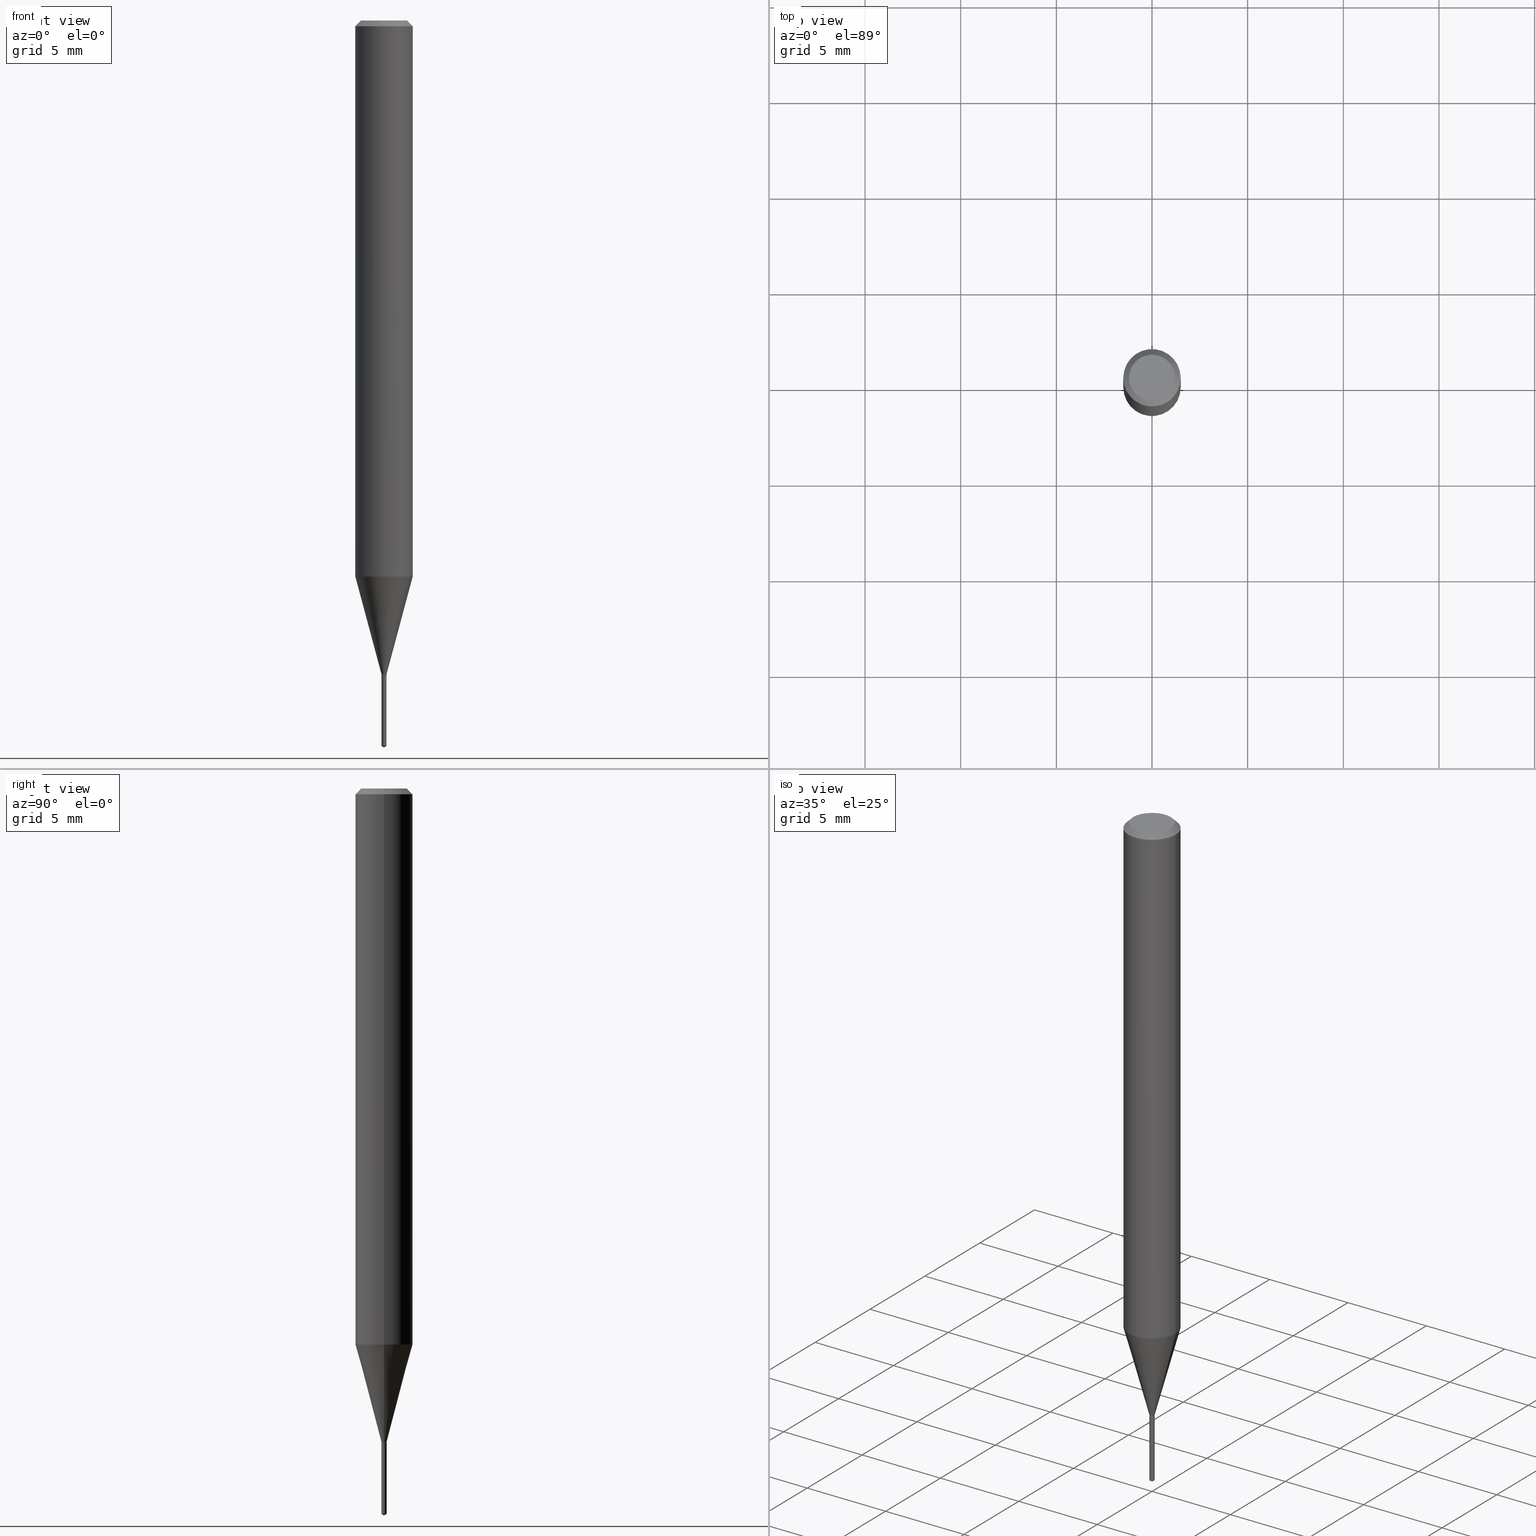
[diagram: canonical four-view strip — front | top / right | iso, engineering-drawing reading convention]
A machine part, canonical four-view strip (front | top / right | iso — engineering-drawing reading convention). The complete STEP part file that produces these views, byte-faithful:
ISO-10303-21;
HEADER;
FILE_DESCRIPTION (( 'STEP AP203' ),
    '1' );
FILE_NAME ('07746.STEP',
    '2024-04-24T02:09:57',
    ( '' ),
    ( '' ),
    'SwSTEP 2.0',
    'SolidWorks 2023',
    '' );
FILE_SCHEMA (( 'CONFIG_CONTROL_DESIGN' ));
ENDSEC;

DATA;
#1 = CARTESIAN_POINT ( 'NONE',  ( 3.292823747528285468E-29, -4.701279622752294493E-15, -1.346499999999999586 ) ) ;
#2 = PERSON_AND_ORGANIZATION_ROLE ( 'design_supplier' ) ;
#3 = CARTESIAN_POINT ( 'NONE',  ( 3.765876499531823880E-17, 0.005299999999995298923, -1.346500000000000030 ) ) ;
#4 = CONICAL_SURFACE ( 'NONE', #290, 0.005300000000000000891, 0.2617993877991500740 ) ;
#5 = CARTESIAN_POINT ( 'NONE',  ( -0.005300000000000000891, -4.659954802351225412E-15, -1.346000000000000085 ) ) ;
#6 = CARTESIAN_POINT ( 'NONE',  ( 3.292823747528286589E-29, -4.701279622752295282E-15, -1.346500000000000030 ) ) ;
#7 = CARTESIAN_POINT ( 'NONE',  ( 3.292823747528285468E-29, -4.701279622752294493E-15, -1.346499999999999586 ) ) ;
#8 = ADVANCED_FACE ( 'NONE', ( #201 ), #329, .T. ) ;
#9 = LINE ( 'NONE', #3, #26 ) ;
#10 = ORIENTED_EDGE ( 'NONE', *, *, #467, .T. ) ;
#11 = DIRECTION ( 'NONE',  ( -2.445468806185136597E-29, 3.491481338843145583E-15, 1.000000000000000000 ) ) ;
#12 = AXIS2_PLACEMENT_3D ( 'NONE', #56, #436, #248 ) ;
#13 = EDGE_LOOP ( 'NONE', ( #389, #215, #32, #187 ) ) ;
#14 = DIRECTION ( 'NONE',  ( -2.438088387897960049E-29, 3.491481338843145188E-15, 1.000000000000000000 ) ) ;
#15 = ORIENTED_EDGE ( 'NONE', *, *, #225, .F. ) ;
#16 = DIRECTION ( 'NONE',  ( 1.000000000000000000, -6.982962677686350330E-15, 0.000000000000000000 ) ) ;
#17 = DIRECTION ( 'NONE',  ( 1.000000000000000000, -6.982962677686250933E-15, 0.000000000000000000 ) ) ;
#18 = CARTESIAN_POINT ( 'NONE',  ( 3.658626092347039619E-29, -5.223662210563784453E-15, -1.496099999999999985 ) ) ;
#19 = CIRCLE ( 'NONE', #147, 0.05905000000000013710 ) ;
#20 = CARTESIAN_POINT ( 'NONE',  ( 2.798355503914224078E-29, -3.995310018534680444E-15, -1.144302269093172786 ) ) ;
#21 = APPROVAL_STATUS ( 'not_yet_approved' ) ;
#22 = EDGE_LOOP ( 'NONE', ( #71, #164, #411 ) ) ;
#23 = PERSON_AND_ORGANIZATION ( #158, #28 ) ;
#24 = DIRECTION ( 'NONE',  ( -0.2588190451025213501, 5.211531920934551042E-15, 0.9659258262890682012 ) ) ;
#25 = ORIENTED_EDGE ( 'NONE', *, *, #446, .F. ) ;
#26 = VECTOR ( 'NONE', #159, 39.37007874015748143 ) ;
#27 = LOCAL_TIME ( 22, 9, 57.00000000000000000, #366 ) ;
#28 = ORGANIZATION ( 'UNSPECIFIED', 'UNSPECIFIED', '' ) ;
#29 = LINE ( 'NONE', #180, #242 ) ;
#30 = ORIENTED_EDGE ( 'NONE', *, *, #364, .F. ) ;
#31 = PERSON_AND_ORGANIZATION_ROLE ( 'creator' ) ;
#32 = ORIENTED_EDGE ( 'NONE', *, *, #455, .T. ) ;
#33 = EDGE_CURVE ( 'NONE', #236, #327, #193, .T. ) ;
#34 = ORIENTED_EDGE ( 'NONE', *, *, #144, .F. ) ;
#35 = APPROVAL_DATE_TIME ( #194, #170 ) ;
#36 = FACE_OUTER_BOUND ( 'NONE', #409, .T. ) ;
#37 = ORIENTED_EDGE ( 'NONE', *, *, #55, .T. ) ;
#38 = AXIS2_PLACEMENT_3D ( 'NONE', #432, #310, #17 ) ;
#39 = DIRECTION ( 'NONE',  ( -2.445468806185136597E-29, 3.491481338843145583E-15, 1.000000000000000000 ) ) ;
#40 = CARTESIAN_POINT ( 'NONE',  ( 0.000000000000000000, 0.000000000000000000, 0.000000000000000000 ) ) ;
#41 = DIRECTION ( 'NONE',  ( 1.000000000000000000, -6.982962677686266711E-15, 4.876176775795936353E-29 ) ) ;
#42 = CIRCLE ( 'NONE', #274, 0.05904999999999999832 ) ;
#43 = DIRECTION ( 'NONE',  ( -2.445468806185136597E-29, 3.491481338843145583E-15, 1.000000000000000000 ) ) ;
#44 = DIRECTION ( 'NONE',  ( 2.445468806185136597E-29, -3.491481338843145583E-15, -1.000000000000000000 ) ) ;
#45 = CARTESIAN_POINT ( 'NONE',  ( 0.05904999999999999832, -4.463468013801466955E-16, -0.01181000000000007044 ) ) ;
#46 = PRODUCT_RELATED_PRODUCT_CATEGORY ( 'detail', '', ( #206 ) ) ;
#47 = LINE ( 'NONE', #202, #122 ) ;
#48 = DIRECTION ( 'NONE',  ( -2.445468806185136877E-29, 3.491481338843145188E-15, 1.000000000000000000 ) ) ;
#49 = VERTEX_POINT ( 'NONE', #149 ) ;
#50 = FACE_OUTER_BOUND ( 'NONE', #240, .T. ) ;
#51 = EDGE_CURVE ( 'NONE', #178, #161, #76, .T. ) ;
#52 = AXIS2_PLACEMENT_3D ( 'NONE', #139, #326, #324 ) ;
#53 = VERTEX_POINT ( 'NONE', #157 ) ;
#54 = CARTESIAN_POINT ( 'NONE',  ( 3.288910997438389961E-29, -4.695693252610146470E-15, -1.344899999999999984 ) ) ;
#55 = EDGE_CURVE ( 'NONE', #327, #53, #9, .T. ) ;
#56 = CARTESIAN_POINT ( 'NONE',  ( 8.265746106709734507E-48, -1.180129479067563789E-33, -3.380025165646692144E-19 ) ) ;
#57 = ORIENTED_EDGE ( 'NONE', *, *, #356, .T. ) ;
#58 = PLANE ( 'NONE',  #266 ) ;
#59 = CARTESIAN_POINT ( 'NONE',  ( 0.005300000000000000891, -4.732702954801883924E-15, -1.344899999999999984 ) ) ;
#60 = ADVANCED_FACE ( 'NONE', ( #458 ), #78, .T. ) ;
#61 = ORIENTED_EDGE ( 'NONE', *, *, #219, .T. ) ;
#62 = DIRECTION ( 'NONE',  ( 0.2588190451025213501, 1.565188264969621968E-15, 0.9659258262890682012 ) ) ;
#63 = DIRECTION ( 'NONE',  ( 2.438088387897960049E-29, -3.491481338843145188E-15, -1.000000000000000000 ) ) ;
#64 = AXIS2_PLACEMENT_3D ( 'NONE', #118, #43, #314 ) ;
#65 = DATE_TIME_ROLE ( 'creation_date' ) ;
#66 = DIRECTION ( 'NONE',  ( 1.000000000000000000, 0.000000000000000000, 0.000000000000000000 ) ) ;
#67 = DIRECTION ( 'NONE',  ( -2.445442211314109806E-29, 3.491519424212141825E-15, 1.000000000000000000 ) ) ;
#68 = VECTOR ( 'NONE', #124, 39.37007874015748143 ) ;
#69 = DATE_AND_TIME ( #321, #309 ) ;
#70 = CC_DESIGN_DATE_AND_TIME_ASSIGNMENT ( #357, #65, ( #398 ) ) ;
#71 = ORIENTED_EDGE ( 'NONE', *, *, #479, .F. ) ;
#72 = EDGE_CURVE ( 'NONE', #129, #396, #42, .T. ) ;
#73 = FACE_OUTER_BOUND ( 'NONE', #22, .T. ) ;
#74 = ORIENTED_EDGE ( 'NONE', *, *, #358, .F. ) ;
#75 = PERSON_AND_ORGANIZATION ( #158, #28 ) ;
#76 = CIRCLE ( 'NONE', #405, 0.004800000000000000447 ) ;
#77 = CARTESIAN_POINT ( 'NONE',  ( 2.888098660104663766E-31, -4.123439461173779647E-17, -0.01181000000000007044 ) ) ;
#78 = CYLINDRICAL_SURFACE ( 'NONE', #415, 0.005300000000000000891 ) ;
#79 = PERSON_AND_ORGANIZATION_ROLE ( 'classification_officer' ) ;
#80 = DIRECTION ( 'NONE',  ( 1.000000000000000000, -6.982962677686250933E-15, 0.000000000000000000 ) ) ;
#81 = VERTEX_POINT ( 'NONE', #261 ) ;
#82 = CALENDAR_DATE ( 2024, 23, 4 ) ;
#83 = DIRECTION ( 'NONE',  ( -2.445468806185136597E-29, 3.491481338843145583E-15, 1.000000000000000000 ) ) ;
#84 = ORIENTED_EDGE ( 'NONE', *, *, #380, .F. ) ;
#85 = PERSON_AND_ORGANIZATION ( #158, #28 ) ;
#86 = AXIS2_PLACEMENT_3D ( 'NONE', #40, #297, #41 ) ;
#87 = CARTESIAN_POINT ( 'NONE',  ( 8.265746106709734507E-48, -1.180129479067563789E-33, -3.380025165646692144E-19 ) ) ;
#88 = EDGE_CURVE ( 'NONE', #133, #384, #420, .T. ) ;
#89 = FACE_OUTER_BOUND ( 'NONE', #92, .T. ) ;
#90 = FACE_OUTER_BOUND ( 'NONE', #460, .T. ) ;
#91 = DIRECTION ( 'NONE',  ( -2.445468806185136597E-29, 3.491481338843145583E-15, 1.000000000000000000 ) ) ;
#92 = EDGE_LOOP ( 'NONE', ( #264, #145, #99, #437 ) ) ;
#93 = CLOSED_SHELL ( 'NONE', ( #421, #348, #289, #443, #60, #172, #412, #163, #308, #209, #452, #8 ) ) ;
#94 = CARTESIAN_POINT ( 'NONE',  ( -0.05905000000000013710, -3.575734533068340951E-15, -1.144302269093172786 ) ) ;
#95 = CIRCLE ( 'NONE', #12, 0.04724000000000000421 ) ;
#96 = SECURITY_CLASSIFICATION ( '', '', #302 ) ;
#97 = ORIENTED_EDGE ( 'NONE', *, *, #306, .T. ) ;
#98 = LINE ( 'NONE', #429, #288 ) ;
#99 = ORIENTED_EDGE ( 'NONE', *, *, #484, .F. ) ;
#100 = DIRECTION ( 'NONE',  ( -2.445468806185136597E-29, 3.491481338843145583E-15, 1.000000000000000000 ) ) ;
#101 = DATE_AND_TIME ( #402, #27 ) ;
#102 = CIRCLE ( 'NONE', #371, 0.005300000000000000891 ) ;
#103 = CC_DESIGN_APPROVAL ( #148, ( #298 ) ) ;
#104 = DIRECTION ( 'NONE',  ( -6.982962677686265133E-15, -1.000000000000000000, 3.468864327941658112E-15 ) ) ;
#105 = DIRECTION ( 'NONE',  ( -2.445468806185136877E-29, 3.491481338843145188E-15, 1.000000000000000000 ) ) ;
#106 = EDGE_LOOP ( 'NONE', ( #367, #393 ) ) ;
#107 = APPLICATION_PROTOCOL_DEFINITION ( 'international standard', 'config_control_design', 1994, #216 ) ;
#108 = AXIS2_PLACEMENT_3D ( 'NONE', #7, #373, #80 ) ;
#109 = EDGE_LOOP ( 'NONE', ( #369, #10 ) ) ;
#110 = DIRECTION ( 'NONE',  ( -2.445442211314109806E-29, 3.491519424212141825E-15, 1.000000000000000000 ) ) ;
#111 = ORIENTED_EDGE ( 'NONE', *, *, #455, .F. ) ;
#112 = EDGE_CURVE ( 'NONE', #463, #396, #116, .T. ) ;
#113 = DATE_AND_TIME ( #82, #154 ) ;
#114 = CARTESIAN_POINT ( 'NONE',  ( 0.000000000000000000, 0.000000000000000000, 0.000000000000000000 ) ) ;
#115 = VECTOR ( 'NONE', #24, 39.37007874015747433 ) ;
#116 = LINE ( 'NONE', #45, #68 ) ;
#117 = APPROVAL_ROLE ( '' ) ;
#118 = CARTESIAN_POINT ( 'NONE',  ( 0.000000000000000000, 0.000000000000000000, 0.000000000000000000 ) ) ;
#119 = DIRECTION ( 'NONE',  ( -6.982962677686265133E-15, -1.000000000000000000, 0.000000000000000000 ) ) ;
#120 = EDGE_CURVE ( 'NONE', #396, #129, #239, .T. ) ;
#121 = AXIS2_PLACEMENT_3D ( 'NONE', #77, #44, #198 ) ;
#122 = VECTOR ( 'NONE', #130, 39.37007874015748143 ) ;
#123 = CARTESIAN_POINT ( 'NONE',  ( 3.650874241760179392E-29, -5.212491971044763500E-15, -1.492915438719153887 ) ) ;
#124 = DIRECTION ( 'NONE',  ( 0.7071067811865453523, -7.319954787623248157E-15, -0.7071067811865496822 ) ) ;
#125 = DIRECTION ( 'NONE',  ( 1.000000000000000000, -6.982962677686250933E-15, 0.000000000000000000 ) ) ;
#126 = CARTESIAN_POINT ( 'NONE',  ( -0.05904999999999999832, 3.711095515056362547E-16, -0.01181000000000007044 ) ) ;
#127 = CC_DESIGN_PERSON_AND_ORGANIZATION_ASSIGNMENT ( #85, #2, ( #298 ) ) ;
#128 = LINE ( 'NONE', #272, #416 ) ;
#129 = VERTEX_POINT ( 'NONE', #301 ) ;
#130 = DIRECTION ( 'NONE',  ( -0.7071067811868120279, 7.493145998871310260E-15, 0.7071067811862831176 ) ) ;
#131 = AXIS2_PLACEMENT_3D ( 'NONE', #20, #247, #385 ) ;
#132 = FACE_OUTER_BOUND ( 'NONE', #13, .T. ) ;
#133 = VERTEX_POINT ( 'NONE', #5 ) ;
#134 = DIRECTION ( 'NONE',  ( 1.000000000000000000, -6.982962677686350330E-15, 0.000000000000000000 ) ) ;
#135 = LENGTH_MEASURE_WITH_UNIT ( LENGTH_MEASURE( 0.02539999999999999897 ), #368 );
#136 = CC_DESIGN_PERSON_AND_ORGANIZATION_ASSIGNMENT ( #440, #260, ( #206 ) ) ;
#137 = LOCAL_TIME ( 22, 9, 57.00000000000000000, #217 ) ;
#138 = ADVANCED_FACE ( 'NONE', ( #427 ), #333, .T. ) ;
#139 = CARTESIAN_POINT ( 'NONE',  ( 3.292823747528286589E-29, -4.701279622752295282E-15, -1.346500000000000030 ) ) ;
#140 = EDGE_LOOP ( 'NONE', ( #474, #403, #299, #287 ) ) ;
#141 = APPLICATION_PROTOCOL_DEFINITION ( 'international standard', 'config_control_design', 1994, #192 ) ;
#142 = ORIENTED_EDGE ( 'NONE', *, *, #285, .T. ) ;
#143 = DIRECTION ( 'NONE',  ( 1.000000000000000000, -6.982962677686350330E-15, 0.000000000000000000 ) ) ;
#144 = EDGE_CURVE ( 'NONE', #463, #279, #258, .T. ) ;
#145 = ORIENTED_EDGE ( 'NONE', *, *, #431, .T. ) ;
#146 = CIRCLE ( 'NONE', #230, 0.005300000000000000891 ) ;
#147 = AXIS2_PLACEMENT_3D ( 'NONE', #477, #394, #278 ) ;
#148 = APPROVAL ( #21, 'UNSPECIFIED' ) ;
#149 = CARTESIAN_POINT ( 'NONE',  ( -3.700970219170428424E-17, -0.005300000000004701992, -1.346500000000000030 ) ) ;
#150 = CARTESIAN_POINT ( 'NONE',  ( 3.658698340357466246E-29, -5.223559646665077197E-15, -1.496099999999999985 ) ) ;
#151 = ORIENTED_EDGE ( 'NONE', *, *, #120, .T. ) ;
#152 = CIRCLE ( 'NONE', #177, 0.005300000000000000891 ) ;
#153 = ADVANCED_FACE ( 'NONE', ( #226 ), #167, .T. ) ;
#154 = LOCAL_TIME ( 22, 9, 57.00000000000000000, #293 ) ;
#155 = CALENDAR_DATE ( 2024, 23, 4 ) ;
#156 = DIRECTION ( 'NONE',  ( 1.000000000000000000, -6.982962677686266711E-15, 0.000000000000000000 ) ) ;
#157 = CARTESIAN_POINT ( 'NONE',  ( 3.765876499532184414E-17, 0.005299999999995298923, -1.346500000000000030 ) ) ;
#158 = PERSON ( 'UNSPECIFIED', 'UNSPECIFIED', 'UNSPECIFIED', ('UNSPECIFIED'), ('UNSPECIFIED'), ('UNSPECIFIED') ) ;
#159 = DIRECTION ( 'NONE',  ( -2.445442211314110086E-29, 3.491519424212141825E-15, 1.000000000000000000 ) ) ;
#160 = DIRECTION ( 'NONE',  ( 1.000000000000000000, -6.982962677686350330E-15, 0.000000000000000000 ) ) ;
#161 = VERTEX_POINT ( 'NONE', #374 ) ;
#162 = LINE ( 'NONE', #311, #400 ) ;
#163 = ADVANCED_FACE ( 'NONE', ( #90 ), #376, .T. ) ;
#164 = ORIENTED_EDGE ( 'NONE', *, *, #33, .T. ) ;
#165 = FACE_OUTER_BOUND ( 'NONE', #464, .T. ) ;
#166 = CARTESIAN_POINT ( 'NONE',  ( 3.292823747528286589E-29, -4.701279622752295282E-15, -1.346500000000000030 ) ) ;
#167 = CONICAL_SURFACE ( 'NONE', #335, 65.52281426576722367, 1.029744258676646318 ) ;
#168 = AXIS2_PLACEMENT_3D ( 'NONE', #487, #173, #143 ) ;
#169 = CARTESIAN_POINT ( 'NONE',  ( 0.004800000000000000447, -4.734797843605188150E-15, -1.346499999999999586 ) ) ;
#170 = APPROVAL ( #461, 'UNSPECIFIED' ) ;
#171 = DIRECTION ( 'NONE',  ( 0.000000000000000000, 0.000000000000000000, 1.000000000000000000 ) ) ;
#172 = ADVANCED_FACE ( 'NONE', ( #195 ), #336, .T. ) ;
#173 = DIRECTION ( 'NONE',  ( -2.445468806185136597E-29, 3.491481338843145583E-15, 1.000000000000000000 ) ) ;
#174 = APPROVAL_ROLE ( '' ) ;
#175 = VECTOR ( 'NONE', #105, 39.37007874015748143 ) ;
#176 = LINE ( 'NONE', #360, #115 ) ;
#177 = AXIS2_PLACEMENT_3D ( 'NONE', #6, #423, #303 ) ;
#178 = VERTEX_POINT ( 'NONE', #252 ) ;
#179 = AXIS2_PLACEMENT_3D ( 'NONE', #54, #11, #160 ) ;
#180 = CARTESIAN_POINT ( 'NONE',  ( 3.658626092347039619E-29, -5.223662210563784453E-15, -1.496099999999999985 ) ) ;
#181 = DIRECTION ( 'NONE',  ( -6.982962677686265133E-15, -1.000000000000000000, 0.000000000000000000 ) ) ;
#182 = ORIENTED_EDGE ( 'NONE', *, *, #341, .T. ) ;
#183 = UNCERTAINTY_MEASURE_WITH_UNIT (LENGTH_MEASURE( 1.000000000000000082E-05 ), #286, 'distance_accuracy_value', 'NONE');
#184 = CARTESIAN_POINT ( 'NONE',  ( 0.04724000000000000421, -3.852183633974369345E-16, -3.380025165621689721E-19 ) ) ;
#185 = MANIFOLD_SOLID_BREP ( 'Body-Move/Copy2[2]', #93 ) ;
#186 = CYLINDRICAL_SURFACE ( 'NONE', #322, 0.05905000000000006771 ) ;
#187 = ORIENTED_EDGE ( 'NONE', *, *, #467, .F. ) ;
#188 = ADVANCED_FACE ( 'NONE', ( #132 ), #319, .T. ) ;
#189 = AXIS2_PLACEMENT_3D ( 'NONE', #390, #211, #355 ) ;
#190 = PERSON_AND_ORGANIZATION_ROLE ( 'creator' ) ;
#191 = VERTEX_POINT ( 'NONE', #59 ) ;
#192 = APPLICATION_CONTEXT ( 'configuration controlled 3d designs of mechanical parts and assemblies' ) ;
#193 = LINE ( 'NONE', #150, #353 ) ;
#194 = DATE_AND_TIME ( #155, #231 ) ;
#195 = FACE_OUTER_BOUND ( 'NONE', #229, .T. ) ;
#196 = CIRCLE ( 'NONE', #212, 0.005300000000000000891 ) ;
#197 = APPROVAL_PERSON_ORGANIZATION ( #75, #170, #117 ) ;
#198 = DIRECTION ( 'NONE',  ( -1.000000000000000000, 6.982962677686266711E-15, 0.000000000000000000 ) ) ;
#199 = DIRECTION ( 'NONE',  ( 1.000000000000000000, -6.982962677686266711E-15, 4.876185090822587894E-29 ) ) ;
#200 = CARTESIAN_POINT ( 'NONE',  ( 3.765876499532181332E-17, 0.005299999999994787180, -1.492915438719153887 ) ) ;
#201 = FACE_OUTER_BOUND ( 'NONE', #140, .T. ) ;
#202 = CARTESIAN_POINT ( 'NONE',  ( -0.004800000000000000447, -4.667173571435809496E-15, -1.346499999999999586 ) ) ;
#203 = AXIS2_PLACEMENT_3D ( 'NONE', #391, #63, #383 ) ;
#204 = PLANE ( 'NONE',  #457 ) ;
#205 = DIRECTION ( 'NONE',  ( 2.445468806185136597E-29, -3.491481338843145583E-15, -1.000000000000000000 ) ) ;
#206 = PRODUCT ( '07746', '07746', '', ( #282 ) ) ;
#207 = ORIENTED_EDGE ( 'NONE', *, *, #325, .F. ) ;
#208 = DIRECTION ( 'NONE',  ( 6.982962677686265922E-15, 1.000000000000000000, -3.491519424212141825E-15 ) ) ;
#209 = ADVANCED_FACE ( 'NONE', ( #350 ), #273, .F. ) ;
#210 = EDGE_LOOP ( 'NONE', ( #428, #354, #84, #408 ) ) ;
#211 = DIRECTION ( 'NONE',  ( -2.445468806185136597E-29, 3.491481338843145583E-15, 1.000000000000000000 ) ) ;
#212 = AXIS2_PLACEMENT_3D ( 'NONE', #352, #465, #134 ) ;
#213 = CONICAL_SURFACE ( 'NONE', #255, 65.52281426576722367, 1.029744258676646318 ) ;
#214 = CC_DESIGN_DATE_AND_TIME_ASSIGNMENT ( #113, #227, ( #96 ) ) ;
#215 = ORIENTED_EDGE ( 'NONE', *, *, #364, .T. ) ;
#216 = APPLICATION_CONTEXT ( 'configuration controlled 3d designs of mechanical parts and assemblies' ) ;
#217 = COORDINATED_UNIVERSAL_TIME_OFFSET ( 5, 0, .BEHIND. ) ;
#218 = APPROVAL_PERSON_ORGANIZATION ( #478, #277, #359 ) ;
#219 = EDGE_CURVE ( 'NONE', #279, #129, #433, .T. ) ;
#220 = APPROVAL_DATE_TIME ( #69, #148 ) ;
#221 = CARTESIAN_POINT ( 'NONE',  ( 0.005300000000000000891, -3.700970219173721302E-17, 2.584373691171846264E-31 ) ) ;
#222 = EDGE_CURVE ( 'NONE', #279, #463, #95, .T. ) ;
#223 = ORIENTED_EDGE ( 'NONE', *, *, #453, .F. ) ;
#224 = CIRCLE ( 'NONE', #131, 0.05905000000000013710 ) ;
#225 = EDGE_CURVE ( 'NONE', #81, #396, #395, .T. ) ;
#226 = FACE_OUTER_BOUND ( 'NONE', #485, .T. ) ;
#227 = DATE_TIME_ROLE ( 'classification_date' ) ;
#228 = DIRECTION ( 'NONE',  ( -6.982962677686265133E-15, -1.000000000000000000, 3.468864327941658112E-15 ) ) ;
#229 = EDGE_LOOP ( 'NONE', ( #434, #346, #142, #343 ) ) ;
#230 = AXIS2_PLACEMENT_3D ( 'NONE', #404, #67, #181 ) ;
#231 = LOCAL_TIME ( 22, 9, 57.00000000000000000, #375 ) ;
#232 = CARTESIAN_POINT ( 'NONE',  ( -9.261859051160046497E-28, 1.322377837254069045E-13, 37.87397874015748300 ) ) ;
#233 = CC_DESIGN_PERSON_AND_ORGANIZATION_ASSIGNMENT ( #419, #79, ( #96 ) ) ;
#234 = DIRECTION ( 'NONE',  ( -2.445468806185136597E-29, 3.491481338843145583E-15, 1.000000000000000000 ) ) ;
#235 = ORIENTED_EDGE ( 'NONE', *, *, #479, .T. ) ;
#236 = VERTEX_POINT ( 'NONE', #18 ) ;
#237 = CARTESIAN_POINT ( 'NONE',  ( -3.700970219170070355E-17, -0.005300000000005212000, -1.492915438719153887 ) ) ;
#238 = CARTESIAN_POINT ( 'NONE',  ( 3.292823747528286589E-29, -4.701279622752295282E-15, -1.346500000000000030 ) ) ;
#239 = CIRCLE ( 'NONE', #489, 0.05904999999999999832 ) ;
#240 = EDGE_LOOP ( 'NONE', ( #442, #57, #470, #292 ) ) ;
#241 =( GEOMETRIC_REPRESENTATION_CONTEXT ( 3 ) GLOBAL_UNCERTAINTY_ASSIGNED_CONTEXT ( ( #183 ) ) GLOBAL_UNIT_ASSIGNED_CONTEXT ( ( #286, #444, #449 ) ) REPRESENTATION_CONTEXT ( 'NONE', 'WORKASPACE' ) );
#242 = VECTOR ( 'NONE', #445, 39.37007874015748854 ) ;
#243 = DIRECTION ( 'NONE',  ( -2.445442211314110086E-29, 3.491519424212141825E-15, 1.000000000000000000 ) ) ;
#244 = DIRECTION ( 'NONE',  ( -0.7071067811865453523, 2.468850131082234184E-15, -0.7071067811865496822 ) ) ;
#245 = ADVANCED_BREP_SHAPE_REPRESENTATION ( '07746', ( #339, #185, #450 ), #241 ) ;
#246 = ORIENTED_EDGE ( 'NONE', *, *, #285, .F. ) ;
#247 = DIRECTION ( 'NONE',  ( -2.445468806185136597E-29, 3.491481338843145583E-15, 1.000000000000000000 ) ) ;
#248 = DIRECTION ( 'NONE',  ( 1.000000000000000000, -6.982962677686266711E-15, 4.876185090822587894E-29 ) ) ;
#249 = EDGE_CURVE ( 'NONE', #161, #459, #430, .T. ) ;
#250 = ORIENTED_EDGE ( 'NONE', *, *, #219, .F. ) ;
#251 = FACE_OUTER_BOUND ( 'NONE', #332, .T. ) ;
#252 = CARTESIAN_POINT ( 'NONE',  ( -0.004800000000000000447, -4.664524344261699084E-15, -1.346499999999999586 ) ) ;
#253 = CARTESIAN_POINT ( 'NONE',  ( 0.000000000000000000, 0.000000000000000000, 0.000000000000000000 ) ) ;
#254 = CIRCLE ( 'NONE', #38, 0.004800000000000000447 ) ;
#255 = AXIS2_PLACEMENT_3D ( 'NONE', #362, #110, #104 ) ;
#256 = DIRECTION ( 'NONE',  ( -2.445468806185136597E-29, 3.491481338843145583E-15, 1.000000000000000000 ) ) ;
#257 = APPROVAL_DATE_TIME ( #101, #277 ) ;
#258 = CIRCLE ( 'NONE', #296, 0.04724000000000000421 ) ;
#259 = ORIENTED_EDGE ( 'NONE', *, *, #484, .T. ) ;
#260 = PERSON_AND_ORGANIZATION_ROLE ( 'design_owner' ) ;
#261 = CARTESIAN_POINT ( 'NONE',  ( 0.05905000000000013710, -4.407653964652056153E-15, -1.144302269093172786 ) ) ;
#262 = CONICAL_SURFACE ( 'NONE', #323, 0.004800000000000000447, 0.7853981633978223131 ) ;
#263 = DIRECTION ( 'NONE',  ( -2.445442211314109806E-29, 3.491519424212141825E-15, 1.000000000000000000 ) ) ;
#264 = ORIENTED_EDGE ( 'NONE', *, *, #358, .T. ) ;
#265 = ORIENTED_EDGE ( 'NONE', *, *, #72, .F. ) ;
#266 = AXIS2_PLACEMENT_3D ( 'NONE', #166, #438, #208 ) ;
#267 = DIRECTION ( 'NONE',  ( -1.000000000000000000, 6.982962677686266711E-15, 0.000000000000000000 ) ) ;
#268 = DIRECTION ( 'NONE',  ( -2.445468806185136597E-29, 3.491481338843145583E-15, 1.000000000000000000 ) ) ;
#269 = ORIENTED_EDGE ( 'NONE', *, *, #72, .T. ) ;
#270 = CARTESIAN_POINT ( 'NONE',  ( 3.288910997438389961E-29, -4.695693252610146470E-15, -1.344899999999999984 ) ) ;
#271 = CARTESIAN_POINT ( 'NONE',  ( 0.05905000000000006771, -4.123439461173745257E-16, 2.879382386107503723E-30 ) ) ;
#272 = CARTESIAN_POINT ( 'NONE',  ( -3.700970219170428424E-17, -0.005300000000004701992, -1.346500000000000030 ) ) ;
#273 = PLANE ( 'NONE',  #203 ) ;
#274 = AXIS2_PLACEMENT_3D ( 'NONE', #454, #39, #381 ) ;
#275 = ORIENTED_EDGE ( 'NONE', *, *, #222, .F. ) ;
#276 = APPROVAL_PERSON_ORGANIZATION ( #23, #148, #174 ) ;
#277 = APPROVAL ( #410, 'UNSPECIFIED' ) ;
#278 = DIRECTION ( 'NONE',  ( 1.000000000000000000, -6.982962677686264344E-15, 0.000000000000000000 ) ) ;
#279 = VERTEX_POINT ( 'NONE', #318 ) ;
#280 = CARTESIAN_POINT ( 'NONE',  ( 3.288910997438389961E-29, -4.695693252610146470E-15, -1.344899999999999984 ) ) ;
#281 = DIRECTION ( 'NONE',  ( -2.445442211314109806E-29, 3.491519424212141825E-15, 1.000000000000000000 ) ) ;
#282 = MECHANICAL_CONTEXT ( 'NONE', #192, 'mechanical' ) ;
#283 = LINE ( 'NONE', #221, #175 ) ;
#284 = ORIENTED_EDGE ( 'NONE', *, *, #51, .F. ) ;
#285 = EDGE_CURVE ( 'NONE', #459, #191, #283, .T. ) ;
#286 =( CONVERSION_BASED_UNIT ( 'INCH', #135 ) LENGTH_UNIT ( ) NAMED_UNIT ( #365 ) );
#287 = ORIENTED_EDGE ( 'NONE', *, *, #345, .F. ) ;
#288 = VECTOR ( 'NONE', #62, 39.37007874015747433 ) ;
#289 = ADVANCED_FACE ( 'NONE', ( #36 ), #186, .T. ) ;
#290 = AXIS2_PLACEMENT_3D ( 'NONE', #280, #100, #305 ) ;
#291 = ORIENTED_EDGE ( 'NONE', *, *, #453, .T. ) ;
#292 = ORIENTED_EDGE ( 'NONE', *, *, #341, .F. ) ;
#293 = COORDINATED_UNIVERSAL_TIME_OFFSET ( 5, 0, .BEHIND. ) ;
#294 = DIRECTION ( 'NONE',  ( 1.000000000000000000, -6.982962677686250933E-15, 0.000000000000000000 ) ) ;
#295 = CLOSED_SHELL ( 'NONE', ( #138, #462, #153, #188, #392 ) ) ;
#296 = AXIS2_PLACEMENT_3D ( 'NONE', #87, #83, #199 ) ;
#297 = DIRECTION ( 'NONE',  ( -2.445468806185136597E-29, 3.491481338843145583E-15, 1.000000000000000000 ) ) ;
#298 = PRODUCT_DEFINITION_FORMATION_WITH_SPECIFIED_SOURCE ( 'ANY', '', #206, .NOT_KNOWN. ) ;
#299 = ORIENTED_EDGE ( 'NONE', *, *, #249, .T. ) ;
#300 = EDGE_CURVE ( 'NONE', #384, #413, #176, .T. ) ;
#301 = CARTESIAN_POINT ( 'NONE',  ( -0.05904999999999999832, -1.598696721106868410E-15, -0.01181000000000007044 ) ) ;
#302 = SECURITY_CLASSIFICATION_LEVEL ( 'unclassified' ) ;
#303 = DIRECTION ( 'NONE',  ( -6.982962677686265133E-15, -1.000000000000000000, 0.000000000000000000 ) ) ;
#304 = DIRECTION ( 'NONE',  ( -2.445468806185136877E-29, 3.491481338843145188E-15, 1.000000000000000000 ) ) ;
#305 = DIRECTION ( 'NONE',  ( 1.000000000000000000, -6.982962677686350330E-15, 0.000000000000000000 ) ) ;
#306 = EDGE_CURVE ( 'NONE', #422, #327, #146, .T. ) ;
#307 = DIRECTION ( 'NONE',  ( 1.000000000000000000, -6.982962677686265133E-15, 4.876176775795935793E-29 ) ) ;
#308 = ADVANCED_FACE ( 'NONE', ( #334 ), #361, .T. ) ;
#309 = LOCAL_TIME ( 22, 9, 57.00000000000000000, #406 ) ;
#310 = DIRECTION ( 'NONE',  ( -2.445468806185136597E-29, 3.491481338843145583E-15, 1.000000000000000000 ) ) ;
#311 = CARTESIAN_POINT ( 'NONE',  ( -0.05905000000000006771, 4.195754854663396409E-16, -2.904631170795525045E-30 ) ) ;
#312 = ORIENTED_EDGE ( 'NONE', *, *, #120, .F. ) ;
#313 = DIRECTION ( 'NONE',  ( 1.000000000000000000, -6.982962677686265922E-15, 4.876176775795935793E-29 ) ) ;
#314 = DIRECTION ( 'NONE',  ( 1.000000000000000000, -6.982962677686265133E-15, 4.876176775795935793E-29 ) ) ;
#315 = AXIS2_PLACEMENT_3D ( 'NONE', #238, #281, #473 ) ;
#316 = CIRCLE ( 'NONE', #52, 0.005300000000000000891 ) ;
#317 = CARTESIAN_POINT ( 'NONE',  ( -0.005300000000000000891, -4.659954802351225412E-15, -1.344899999999999984 ) ) ;
#318 = CARTESIAN_POINT ( 'NONE',  ( -0.04724000000000000421, 3.504923541997677355E-16, -3.380025165670481712E-19 ) ) ;
#319 = CYLINDRICAL_SURFACE ( 'NONE', #315, 0.005300000000000000891 ) ;
#320 = ORIENTED_EDGE ( 'NONE', *, *, #112, .F. ) ;
#321 = CALENDAR_DATE ( 2024, 23, 4 ) ;
#322 = AXIS2_PLACEMENT_3D ( 'NONE', #451, #256, #441 ) ;
#323 = AXIS2_PLACEMENT_3D ( 'NONE', #435, #234, #125 ) ;
#324 = DIRECTION ( 'NONE',  ( -6.982962677686265133E-15, -1.000000000000000000, 0.000000000000000000 ) ) ;
#325 = EDGE_CURVE ( 'NONE', #49, #53, #152, .T. ) ;
#326 = DIRECTION ( 'NONE',  ( -2.445442211314109806E-29, 3.491519424212141825E-15, 1.000000000000000000 ) ) ;
#327 = VERTEX_POINT ( 'NONE', #200 ) ;
#328 = ORIENTED_EDGE ( 'NONE', *, *, #225, .T. ) ;
#329 = CONICAL_SURFACE ( 'NONE', #108, 0.004800000000000000447, 0.7853981633978223131 ) ;
#330 = CC_DESIGN_APPROVAL ( #170, ( #96 ) ) ;
#331 = ORIENTED_EDGE ( 'NONE', *, *, #88, .T. ) ;
#332 = EDGE_LOOP ( 'NONE', ( #34, #483, #151, #250 ) ) ;
#333 = CYLINDRICAL_SURFACE ( 'NONE', #456, 0.005300000000000000891 ) ;
#334 = FACE_OUTER_BOUND ( 'NONE', #377, .T. ) ;
#335 = AXIS2_PLACEMENT_3D ( 'NONE', #232, #418, #228 ) ;
#336 = CYLINDRICAL_SURFACE ( 'NONE', #64, 0.005300000000000000891 ) ;
#337 = PERSON_AND_ORGANIZATION ( #158, #28 ) ;
#338 = DIRECTION ( 'NONE',  ( -2.445468806185136597E-29, 3.491481338843145583E-15, 1.000000000000000000 ) ) ;
#339 = MANIFOLD_SOLID_BREP ( 'Body-Move/Copy2[1]', #295 ) ;
#340 = ORIENTED_EDGE ( 'NONE', *, *, #33, .F. ) ;
#341 = EDGE_CURVE ( 'NONE', #413, #81, #224, .T. ) ;
#342 = DIRECTION ( 'NONE',  ( 6.090539988449750037E-15, 0.8571673007021097801, 0.5150380749100581523 ) ) ;
#343 = ORIENTED_EDGE ( 'NONE', *, *, #356, .F. ) ;
#344 = FACE_OUTER_BOUND ( 'NONE', #210, .T. ) ;
#345 = EDGE_CURVE ( 'NONE', #133, #459, #196, .T. ) ;
#346 = ORIENTED_EDGE ( 'NONE', *, *, #345, .T. ) ;
#347 = CARTESIAN_POINT ( 'NONE',  ( 5.680607918532201956E-28, 7.193274794951707985E-14, -1.346500000000000030 ) ) ;
#348 = ADVANCED_FACE ( 'NONE', ( #251 ), #476, .T. ) ;
#349 = DIRECTION ( 'NONE',  ( -2.445442211314109806E-29, 3.491519424212141825E-15, 1.000000000000000000 ) ) ;
#350 = FACE_OUTER_BOUND ( 'NONE', #106, .T. ) ;
#351 = EDGE_CURVE ( 'NONE', #191, #81, #98, .T. ) ;
#352 = CARTESIAN_POINT ( 'NONE',  ( 3.291601013125194348E-29, -4.699533882082873778E-15, -1.346000000000000085 ) ) ;
#353 = VECTOR ( 'NONE', #342, 39.37007874015748143 ) ;
#354 = ORIENTED_EDGE ( 'NONE', *, *, #300, .T. ) ;
#355 = DIRECTION ( 'NONE',  ( 1.000000000000000000, -6.982962677686350330E-15, 0.000000000000000000 ) ) ;
#356 = EDGE_CURVE ( 'NONE', #384, #191, #399, .T. ) ;
#357 = DATE_AND_TIME ( #401, #137 ) ;
#358 = EDGE_CURVE ( 'NONE', #161, #178, #254, .T. ) ;
#359 = APPROVAL_ROLE ( '' ) ;
#360 = CARTESIAN_POINT ( 'NONE',  ( -0.005300000000000000891, -4.658034487614861364E-15, -1.344899999999999984 ) ) ;
#361 = CONICAL_SURFACE ( 'NONE', #121, 0.05904999999999999832, 0.7853981633974452814 ) ;
#362 = CARTESIAN_POINT ( 'NONE',  ( -9.261859051160046497E-28, 1.322377837254069045E-13, 37.87397874015748300 ) ) ;
#363 = CC_DESIGN_APPROVAL ( #277, ( #398 ) ) ;
#364 = EDGE_CURVE ( 'NONE', #327, #422, #102, .T. ) ;
#365 = DIMENSIONAL_EXPONENTS ( 1.000000000000000000, 0.000000000000000000, 0.000000000000000000, 0.000000000000000000, 0.000000000000000000, 0.000000000000000000, 0.000000000000000000 ) ;
#366 = COORDINATED_UNIVERSAL_TIME_OFFSET ( 5, 0, .BEHIND. ) ;
#367 = ORIENTED_EDGE ( 'NONE', *, *, #222, .T. ) ;
#368 =( LENGTH_UNIT ( ) NAMED_UNIT ( * ) SI_UNIT ( $, .METRE. ) );
#369 = ORIENTED_EDGE ( 'NONE', *, *, #325, .T. ) ;
#370 = CC_DESIGN_PERSON_AND_ORGANIZATION_ASSIGNMENT ( #482, #31, ( #398 ) ) ;
#371 = AXIS2_PLACEMENT_3D ( 'NONE', #123, #349, #382 ) ;
#372 = CC_DESIGN_SECURITY_CLASSIFICATION ( #96, ( #298 ) ) ;
#373 = DIRECTION ( 'NONE',  ( -2.445468806185136597E-29, 3.491481338843145583E-15, 1.000000000000000000 ) ) ;
#374 = CARTESIAN_POINT ( 'NONE',  ( 0.004800000000000000447, -4.734797843605188150E-15, -1.346499999999999586 ) ) ;
#375 = COORDINATED_UNIVERSAL_TIME_OFFSET ( 5, 0, .BEHIND. ) ;
#376 = CYLINDRICAL_SURFACE ( 'NONE', #86, 0.05905000000000006771 ) ;
#377 = EDGE_LOOP ( 'NONE', ( #320, #275, #61, #269 ) ) ;
#378 = VECTOR ( 'NONE', #386, 39.37007874015748143 ) ;
#379 = CARTESIAN_POINT ( 'NONE',  ( 3.292823747528286589E-29, -4.701279622752295282E-15, -1.346500000000000030 ) ) ;
#380 = EDGE_CURVE ( 'NONE', #81, #413, #19, .T. ) ;
#381 = DIRECTION ( 'NONE',  ( 1.000000000000000000, -6.982962677686266711E-15, 0.000000000000000000 ) ) ;
#382 = DIRECTION ( 'NONE',  ( -6.982962677686265133E-15, -1.000000000000000000, 0.000000000000000000 ) ) ;
#383 = DIRECTION ( 'NONE',  ( -1.000000000000000000, 6.982962677686265922E-15, -4.876176775795935793E-29 ) ) ;
#384 = VERTEX_POINT ( 'NONE', #317 ) ;
#385 = DIRECTION ( 'NONE',  ( 1.000000000000000000, -6.982962677686264344E-15, 0.000000000000000000 ) ) ;
#386 = DIRECTION ( 'NONE',  ( 0.7071067811868120279, -2.468850131085027146E-15, 0.7071067811862831176 ) ) ;
#387 = AXIS2_PLACEMENT_3D ( 'NONE', #471, #205, #267 ) ;
#388 = CONICAL_SURFACE ( 'NONE', #179, 0.005300000000000000891, 0.2617993877991500740 ) ;
#389 = ORIENTED_EDGE ( 'NONE', *, *, #55, .F. ) ;
#390 = CARTESIAN_POINT ( 'NONE',  ( 3.288910997438389961E-29, -4.695693252610146470E-15, -1.344899999999999984 ) ) ;
#391 = CARTESIAN_POINT ( 'NONE',  ( 4.132873053354867254E-48, -5.900647395337818946E-34, -1.690012582823346072E-19 ) ) ;
#392 = ADVANCED_FACE ( 'NONE', ( #397 ), #58, .F. ) ;
#393 = ORIENTED_EDGE ( 'NONE', *, *, #144, .T. ) ;
#394 = DIRECTION ( 'NONE',  ( -2.445468806185136597E-29, 3.491481338843145583E-15, 1.000000000000000000 ) ) ;
#395 = LINE ( 'NONE', #271, #448 ) ;
#396 = VERTEX_POINT ( 'NONE', #426 ) ;
#397 = FACE_OUTER_BOUND ( 'NONE', #109, .T. ) ;
#398 = PRODUCT_DEFINITION ( 'UNKNOWN', '', #298, #486 ) ;
#399 = CIRCLE ( 'NONE', #189, 0.005300000000000000891 ) ;
#400 = VECTOR ( 'NONE', #472, 39.37007874015748143 ) ;
#401 = CALENDAR_DATE ( 2024, 23, 4 ) ;
#402 = CALENDAR_DATE ( 2024, 23, 4 ) ;
#403 = ORIENTED_EDGE ( 'NONE', *, *, #51, .T. ) ;
#404 = CARTESIAN_POINT ( 'NONE',  ( 3.650874241760179392E-29, -5.212491971044763500E-15, -1.492915438719153887 ) ) ;
#405 = AXIS2_PLACEMENT_3D ( 'NONE', #1, #338, #294 ) ;
#406 = COORDINATED_UNIVERSAL_TIME_OFFSET ( 5, 0, .BEHIND. ) ;
#407 = PRODUCT_DEFINITION_SHAPE ( 'NONE', 'NONE',  #398 ) ;
#408 = ORIENTED_EDGE ( 'NONE', *, *, #351, .F. ) ;
#409 = EDGE_LOOP ( 'NONE', ( #490, #291, #312, #15 ) ) ;
#410 = APPROVAL_STATUS ( 'not_yet_approved' ) ;
#411 = ORIENTED_EDGE ( 'NONE', *, *, #306, .F. ) ;
#412 = ADVANCED_FACE ( 'NONE', ( #50 ), #4, .T. ) ;
#413 = VERTEX_POINT ( 'NONE', #94 ) ;
#414 = SHAPE_DEFINITION_REPRESENTATION ( #407, #245 ) ;
#415 = AXIS2_PLACEMENT_3D ( 'NONE', #114, #424, #307 ) ;
#416 = VECTOR ( 'NONE', #243, 39.37007874015748143 ) ;
#417 = CARTESIAN_POINT ( 'NONE',  ( 2.888098660104663766E-31, -4.123439461173779647E-17, -0.01181000000000007044 ) ) ;
#418 = DIRECTION ( 'NONE',  ( -2.445442211314109806E-29, 3.491519424212141825E-15, 1.000000000000000000 ) ) ;
#419 = PERSON_AND_ORGANIZATION ( #158, #28 ) ;
#420 = LINE ( 'NONE', #468, #466 ) ;
#421 = ADVANCED_FACE ( 'NONE', ( #89 ), #262, .T. ) ;
#422 = VERTEX_POINT ( 'NONE', #237 ) ;
#423 = DIRECTION ( 'NONE',  ( -2.445442211314109806E-29, 3.491519424212141825E-15, 1.000000000000000000 ) ) ;
#424 = DIRECTION ( 'NONE',  ( -2.445468806185136597E-29, 3.491481338843145583E-15, 1.000000000000000000 ) ) ;
#425 = CIRCLE ( 'NONE', #168, 0.005300000000000000891 ) ;
#426 = CARTESIAN_POINT ( 'NONE',  ( 0.05904999999999999832, -4.535783407291118600E-16, -0.01181000000000007044 ) ) ;
#427 = FACE_OUTER_BOUND ( 'NONE', #447, .T. ) ;
#428 = ORIENTED_EDGE ( 'NONE', *, *, #446, .T. ) ;
#429 = CARTESIAN_POINT ( 'NONE',  ( 0.005300000000000000891, -4.732702954801883924E-15, -1.344899999999999984 ) ) ;
#430 = LINE ( 'NONE', #169, #378 ) ;
#431 = EDGE_CURVE ( 'NONE', #178, #133, #47, .T. ) ;
#432 = CARTESIAN_POINT ( 'NONE',  ( 3.292823747528285468E-29, -4.701279622752294493E-15, -1.346499999999999586 ) ) ;
#433 = LINE ( 'NONE', #126, #480 ) ;
#434 = ORIENTED_EDGE ( 'NONE', *, *, #88, .F. ) ;
#435 = CARTESIAN_POINT ( 'NONE',  ( 3.292823747528285468E-29, -4.701279622752294493E-15, -1.346499999999999586 ) ) ;
#436 = DIRECTION ( 'NONE',  ( -2.445468806185136597E-29, 3.491481338843145583E-15, 1.000000000000000000 ) ) ;
#437 = ORIENTED_EDGE ( 'NONE', *, *, #249, .F. ) ;
#438 = DIRECTION ( 'NONE',  ( 2.445442211314109526E-29, -3.491519424212141825E-15, -1.000000000000000000 ) ) ;
#439 = CC_DESIGN_PERSON_AND_ORGANIZATION_ASSIGNMENT ( #337, #190, ( #298 ) ) ;
#440 = PERSON_AND_ORGANIZATION ( #158, #28 ) ;
#441 = DIRECTION ( 'NONE',  ( 1.000000000000000000, -6.982962677686266711E-15, 4.876176775795936353E-29 ) ) ;
#442 = ORIENTED_EDGE ( 'NONE', *, *, #300, .F. ) ;
#443 = ADVANCED_FACE ( 'NONE', ( #344 ), #388, .T. ) ;
#444 =( NAMED_UNIT ( * ) PLANE_ANGLE_UNIT ( ) SI_UNIT ( $, .RADIAN. ) );
#445 = DIRECTION ( 'NONE',  ( -5.985567269335913669E-15, -0.8571673007021062274, 0.5150380749100640365 ) ) ;
#446 = EDGE_CURVE ( 'NONE', #191, #384, #481, .T. ) ;
#447 = EDGE_LOOP ( 'NONE', ( #97, #37, #207, #111 ) ) ;
#448 = VECTOR ( 'NONE', #48, 39.37007874015748143 ) ;
#449 =( NAMED_UNIT ( * ) SI_UNIT ( $, .STERADIAN. ) SOLID_ANGLE_UNIT ( ) );
#450 = AXIS2_PLACEMENT_3D ( 'NONE', #253, #171, #66 ) ;
#451 = CARTESIAN_POINT ( 'NONE',  ( 0.000000000000000000, 0.000000000000000000, 0.000000000000000000 ) ) ;
#452 = ADVANCED_FACE ( 'NONE', ( #165 ), #204, .F. ) ;
#453 = EDGE_CURVE ( 'NONE', #413, #129, #162, .T. ) ;
#454 = CARTESIAN_POINT ( 'NONE',  ( 2.888098660104663766E-31, -4.123439461173779647E-17, -0.01181000000000007044 ) ) ;
#455 = EDGE_CURVE ( 'NONE', #422, #49, #128, .T. ) ;
#456 = AXIS2_PLACEMENT_3D ( 'NONE', #379, #263, #119 ) ;
#457 = AXIS2_PLACEMENT_3D ( 'NONE', #347, #14, #313 ) ;
#458 = FACE_OUTER_BOUND ( 'NONE', #488, .T. ) ;
#459 = VERTEX_POINT ( 'NONE', #475 ) ;
#460 = EDGE_LOOP ( 'NONE', ( #223, #182, #328, #265 ) ) ;
#461 = APPROVAL_STATUS ( 'not_yet_approved' ) ;
#462 = ADVANCED_FACE ( 'NONE', ( #73 ), #213, .T. ) ;
#463 = VERTEX_POINT ( 'NONE', #184 ) ;
#464 = EDGE_LOOP ( 'NONE', ( #74, #284 ) ) ;
#465 = DIRECTION ( 'NONE',  ( -2.445468806185136597E-29, 3.491481338843145583E-15, 1.000000000000000000 ) ) ;
#466 = VECTOR ( 'NONE', #304, 39.37007874015748143 ) ;
#467 = EDGE_CURVE ( 'NONE', #53, #49, #316, .T. ) ;
#468 = CARTESIAN_POINT ( 'NONE',  ( -0.005300000000000000891, 3.765876499528531618E-17, -2.607035597835100114E-31 ) ) ;
#469 = AXIS2_PLACEMENT_3D ( 'NONE', #270, #91, #16 ) ;
#470 = ORIENTED_EDGE ( 'NONE', *, *, #351, .T. ) ;
#471 = CARTESIAN_POINT ( 'NONE',  ( 2.888098660104663766E-31, -4.123439461173779647E-17, -0.01181000000000007044 ) ) ;
#472 = DIRECTION ( 'NONE',  ( -2.445468806185136877E-29, 3.491481338843145188E-15, 1.000000000000000000 ) ) ;
#473 = DIRECTION ( 'NONE',  ( -6.982962677686265133E-15, -1.000000000000000000, 0.000000000000000000 ) ) ;
#474 = ORIENTED_EDGE ( 'NONE', *, *, #431, .F. ) ;
#475 = CARTESIAN_POINT ( 'NONE',  ( 0.005300000000000000891, -4.736543584274611232E-15, -1.346000000000000085 ) ) ;
#476 = CONICAL_SURFACE ( 'NONE', #387, 0.05904999999999999832, 0.7853981633974452814 ) ;
#477 = CARTESIAN_POINT ( 'NONE',  ( 2.798355503914224078E-29, -3.995310018534680444E-15, -1.144302269093172786 ) ) ;
#478 = PERSON_AND_ORGANIZATION ( #158, #28 ) ;
#479 = EDGE_CURVE ( 'NONE', #236, #422, #29, .T. ) ;
#480 = VECTOR ( 'NONE', #244, 39.37007874015748143 ) ;
#481 = CIRCLE ( 'NONE', #469, 0.005300000000000000891 ) ;
#482 = PERSON_AND_ORGANIZATION ( #158, #28 ) ;
#483 = ORIENTED_EDGE ( 'NONE', *, *, #112, .T. ) ;
#484 = EDGE_CURVE ( 'NONE', #459, #133, #425, .T. ) ;
#485 = EDGE_LOOP ( 'NONE', ( #340, #235, #30 ) ) ;
#486 = DESIGN_CONTEXT ( 'detailed design', #216, 'design' ) ;
#487 = CARTESIAN_POINT ( 'NONE',  ( 3.291601013125194348E-29, -4.699533882082873778E-15, -1.346000000000000085 ) ) ;
#488 = EDGE_LOOP ( 'NONE', ( #259, #331, #25, #246 ) ) ;
#489 = AXIS2_PLACEMENT_3D ( 'NONE', #417, #268, #156 ) ;
#490 = ORIENTED_EDGE ( 'NONE', *, *, #380, .T. ) ;
ENDSEC;
END-ISO-10303-21;
